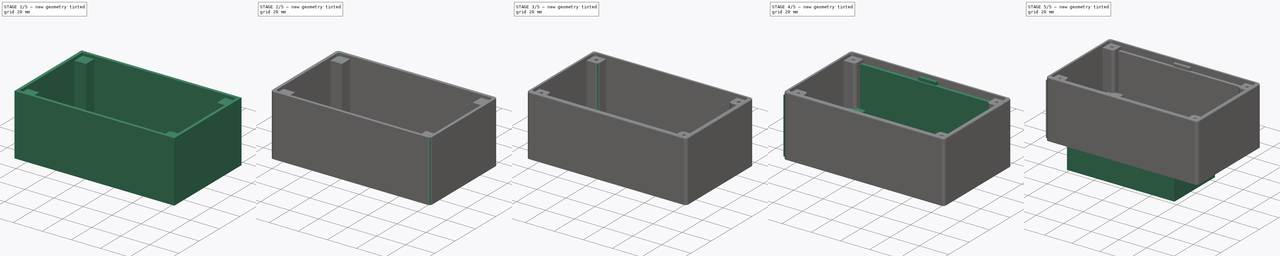
[diagram: build sequence overview — one tinted view per stage of 5, left to right]
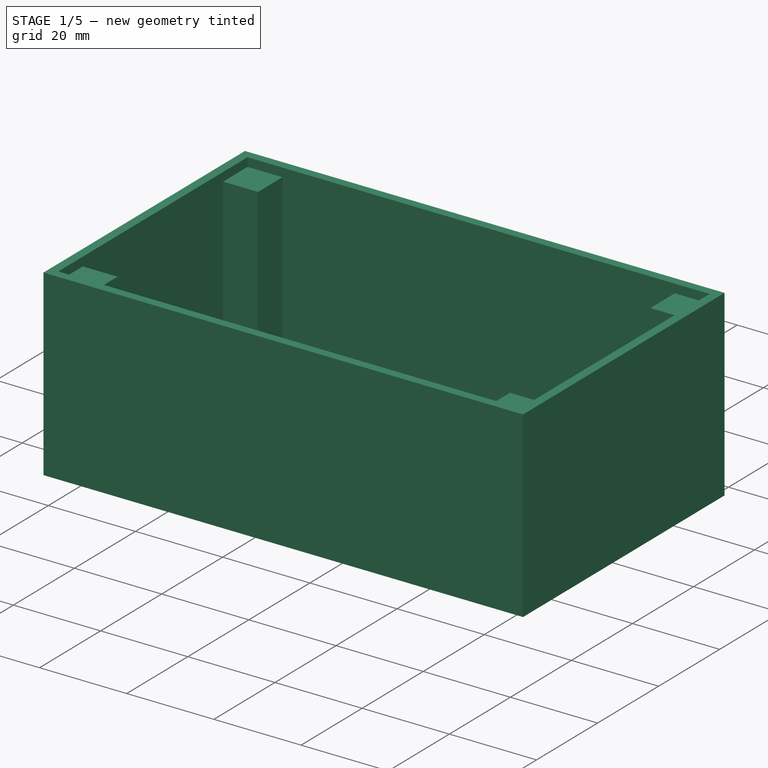
[diagram: stage 1 of 5 — iso view after this stage's code; geometry added in this stage tinted green]
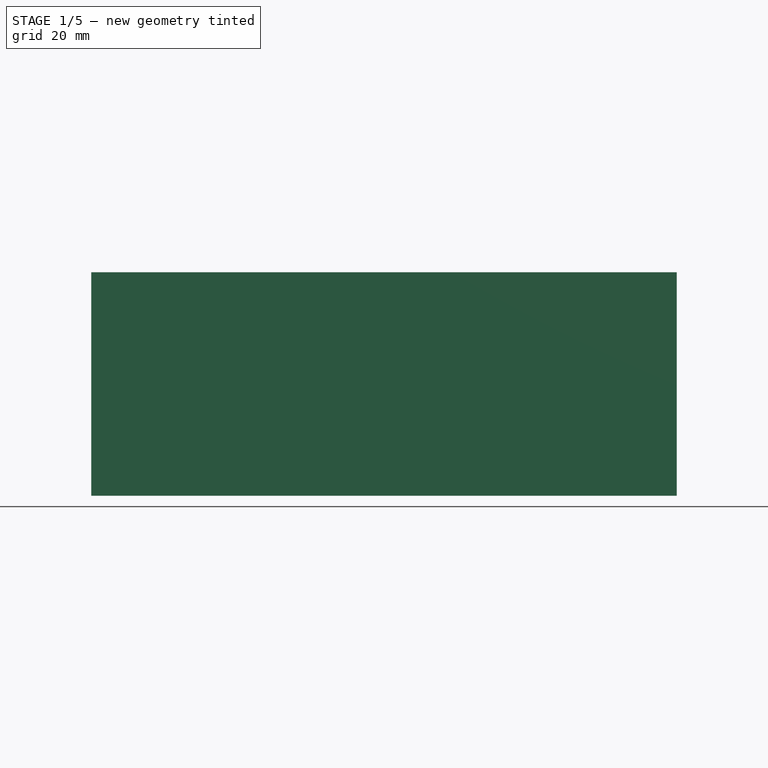
[diagram: stage 1 of 5 — front view after this stage's code; geometry added in this stage tinted green]
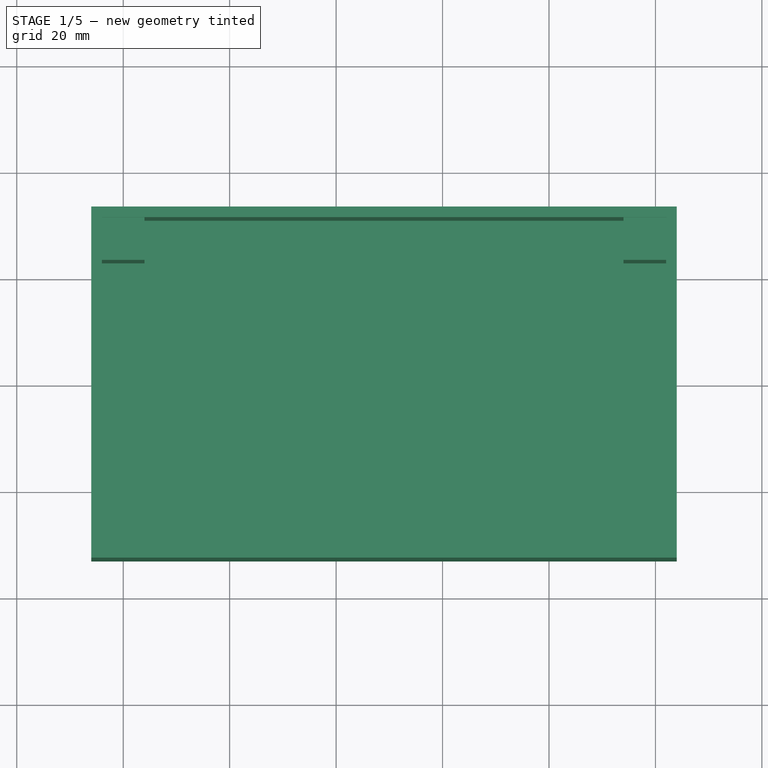
[diagram: stage 1 of 5 — top view after this stage's code; geometry added in this stage tinted green]
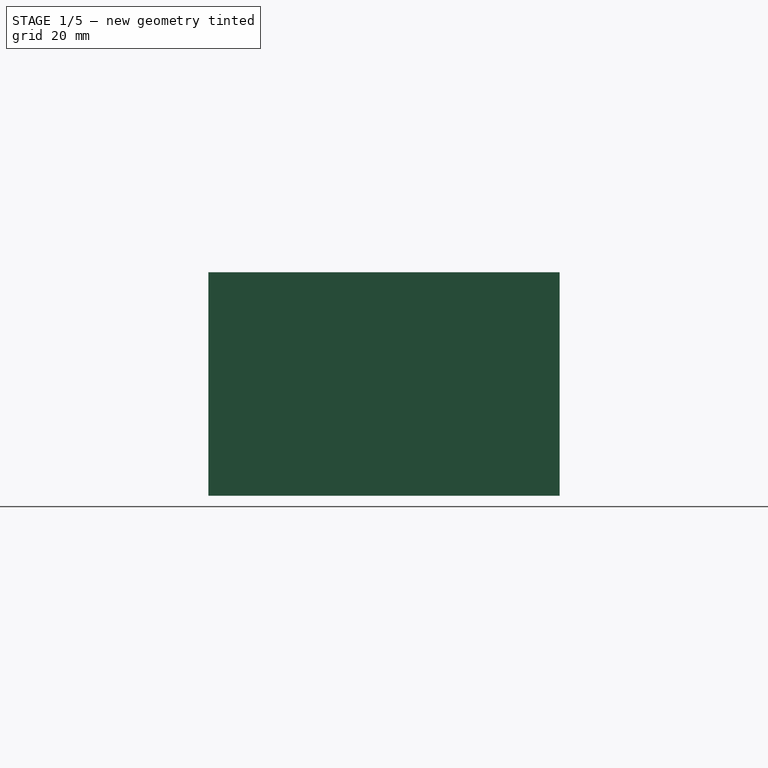
[diagram: stage 1 of 5 — right view after this stage's code; geometry added in this stage tinted green]
FCSTD DOCUMENT  (FreeCAD 0.21R33771 (Git))
Label: powerbank_case
License: All rights reserved
LicenseURL: http://en.wikipedia.org/wiki/All_rights_reserved
objects: Sketcher::SketchObject×17, PartDesign::Pad×11, PartDesign::Fillet×9, PartDesign::Pocket×6, PartDesign::Body×3, App::Part×3
note: 72 computed .brp shape members not serialized (recipe doc carries the construction recipe); baked Part::Feature solids carry a one-line shape summary decoded from their .brp

FEATURE [PartDesign::Body] Body001  label="Body"
  Group = -> [Sketch004,Pad004,Sketch006,Pocket002,Sketch007,Pad005]
  Origin = -> Origin003
  Tip = -> Pad005
FEATURE [App::Part] Part001  label="case"
  Group = -> [Body001]
  Origin = -> Origin002
FEATURE [Sketcher::SketchObject] Sketch008
  FullyConstrained = true
  MapMode = 5
  Support = -> [XY_Plane005]
  sketch-geometry (4):
    g0: LineSegment StartX=-46 StartY=33 StartZ=0 EndX=64 EndY=33 EndZ=0
    g1: LineSegment StartX=64 StartY=33 StartZ=0 EndX=64 EndY=-33 EndZ=0
    g2: LineSegment StartX=64 StartY=-33 StartZ=0 EndX=-46 EndY=-33 EndZ=0
    g3: LineSegment StartX=-46 StartY=-33 StartZ=0 EndX=-46 EndY=33 EndZ=0
  constraints (11):
    c: Coincident(g0,g1)
    c: Coincident(g1,g2)
    c: Coincident(g2,g3)
    c: Coincident(g3,g0)
    c: Horizontal(g0)
    c: Horizontal(g2)
    c: Vertical(g3)
    c: DistanceX(g0,g0) = 110
    c: DistanceY(g3,g3) = 66
    c: DistanceX(g0,g-1) = 46
    c: Symmetric(g0,g1,g-1)
FEATURE [PartDesign::Pad] Pad006  label="boden"
  Direction = (0,0,1)
  Length = 2
  Length2 = 10
  Profile = -> Sketch008
  ReferenceAxis = -> Sketch008 [N_Axis]
  Type = 0
FEATURE [Sketcher::SketchObject] Sketch009
  FullyConstrained = false
  Placement = pos=(0,0,2) rot=(0,0,1;0rad)
  Support = -> [Pad006]
  sketch-geometry (4):
    g0: Circle CenterX=-38 CenterY=18.5 CenterZ=0 NormalX=0 NormalY=0 NormalZ=1 AngleXU=0 Radius=3
    g1: Circle CenterX=45 CenterY=18.5 CenterZ=0 NormalX=0 NormalY=0 NormalZ=1 AngleXU=0 Radius=3
    g2: Circle CenterX=-38 CenterY=-18.5 CenterZ=0 NormalX=0 NormalY=0 NormalZ=1 AngleXU=0 Radius=3
    g3: Circle CenterX=45 CenterY=-18.5 CenterZ=0 NormalX=0 NormalY=0 NormalZ=1 AngleXU=0 Radius=3
  constraints (9):
    c: Diameter(g0) = 6
    c: Equal(g0,g1) = 6
    c: DistanceX(g0,g1) = 83
    c: Equal(g0,g2) = 6
    c: Equal(g2,g3) = 6
    c: Symmetric(g0,g2,g-1)
    c: Symmetric(g1,g3,g-1)
    c: DistanceY(g3,g1) = 37
    c: DistanceY(g2,g0) = 37
FEATURE [Sketcher::SketchObject] Sketch010
  ExternalGeometry = -> [Pad006]
  FullyConstrained = true
  MapMode = 5
  Placement = pos=(0,0,2) rot=(0,0,1;0rad)
  Support = -> [Pad006]
  sketch-geometry (4):
    g0: LineSegment StartX=-46 StartY=33 StartZ=0 EndX=64 EndY=33 EndZ=0
    g1: LineSegment StartX=64 StartY=33 StartZ=0 EndX=64 EndY=-33 EndZ=0
    g2: LineSegment StartX=64 StartY=-33 StartZ=0 EndX=-46 EndY=-33 EndZ=0
    g3: LineSegment StartX=-46 StartY=-33 StartZ=0 EndX=-46 EndY=33 EndZ=0
  constraints (10):
    c: Coincident(g0,g1)
    c: Coincident(g1,g2)
    c: Coincident(g2,g3)
    c: Coincident(g3,g0)
    c: Horizontal(g0)
    c: Horizontal(g2)
    c: Vertical(g1)
    c: Vertical(g3)
    c: Coincident(g0,g-3)
    c: Coincident(g1,g-5)
FEATURE [PartDesign::Pad] Pad008
  BaseFeature = -> Pad006
  Direction = (0,0,1)
  Length = 40
  Length2 = 10
  Profile = -> Sketch010
  ReferenceAxis = -> Sketch010 [N_Axis]
  Type = 0
FEATURE [Sketcher::SketchObject] Sketch011
  ExternalGeometry = -> [Pad008]
  FullyConstrained = true
  MapMode = 5
  Placement = pos=(0,0,42) rot=(0,0,1;0rad)
  Support = -> [Pad008]
  sketch-geometry (4):
    g0: LineSegment StartX=-44 StartY=31 StartZ=0 EndX=62 EndY=31 EndZ=0
    g1: LineSegment StartX=62 StartY=31 StartZ=0 EndX=62 EndY=-31 EndZ=0
    g2: LineSegment StartX=62 StartY=-31 StartZ=0 EndX=-44 EndY=-31 EndZ=0
    g3: LineSegment StartX=-44 StartY=-31 StartZ=0 EndX=-44 EndY=31 EndZ=0
  constraints (15):
    c: Coincident(g0,g1)
    c: Coincident(g1,g2)
    c: Coincident(g2,g3)
    c: Coincident(g3,g0)
    c: Horizontal(g0)
    c: Horizontal(g2)
    c: Vertical(g1)
    c: Vertical(g3)
    c: DistanceY(g0,g0) = 0
    c: DistanceY(g-3,g-3) = 0
    c: DistanceY(g0,g0) = 0
    c: DistanceY(g0,g-3) = 2
    c: DistanceX(g-4,g2) = 2
    c: DistanceX(g0,g-3) = 2
    c: DistanceY(g-5,g1) = 2
FEATURE [PartDesign::Pocket] Pocket003
  BaseFeature = -> Pad008
  Direction = (0,0,-1)
  Length = 40
  Length2 = 5
  Profile = -> Sketch011
  ReferenceAxis = -> Sketch011 [N_Axis]
  Type = 0
FEATURE [Sketcher::SketchObject] Sketch012
  ExternalGeometry = -> [Pocket003]
  FullyConstrained = true
  MapMode = 5
  Placement = pos=(0,0,2) rot=(0,0,1;0rad)
  Support = -> [Pocket003]
  sketch-geometry (16):
    g0: LineSegment StartX=-44 StartY=31 StartZ=0 EndX=-36 EndY=31 EndZ=0
    g1: LineSegment StartX=-36 StartY=31 StartZ=0 EndX=-36 EndY=23 EndZ=0
    g2: LineSegment StartX=-36 StartY=23 StartZ=0 EndX=-44 EndY=23 EndZ=0
    g3: LineSegment StartX=-44 StartY=23 StartZ=0 EndX=-44 EndY=31 EndZ=0
    g4: LineSegment StartX=54 StartY=31 StartZ=0 EndX=62 EndY=31 EndZ=0
    g5: LineSegment StartX=62 StartY=31 StartZ=0 EndX=62 EndY=23 EndZ=0
    g6: LineSegment StartX=62 StartY=23 StartZ=0 EndX=54 EndY=23 EndZ=0
    g7: LineSegment StartX=54 StartY=23 StartZ=0 EndX=54 EndY=31 EndZ=0
    g8: LineSegment StartX=-44 StartY=-23 StartZ=0 EndX=-36 EndY=-23 EndZ=0
    g9: LineSegment StartX=-36 StartY=-23 StartZ=0 EndX=-36 EndY=-31 EndZ=0
    g10: LineSegment StartX=-36 StartY=-31 StartZ=0 EndX=-44 EndY=-31 EndZ=0
    g11: LineSegment StartX=-44 StartY=-31 StartZ=0 EndX=-44 EndY=-23 EndZ=0
    g12: LineSegment StartX=54 StartY=-23 StartZ=0 EndX=62 EndY=-23 EndZ=0
    g13: LineSegment StartX=62 StartY=-23 StartZ=0 EndX=62 EndY=-31 EndZ=0
    g14: LineSegment StartX=62 StartY=-31 StartZ=0 EndX=54 EndY=-31 EndZ=0
    g15: LineSegment StartX=54 StartY=-31 StartZ=0 EndX=54 EndY=-23 EndZ=0
  constraints (47):
    c: Coincident(g0,g1)
    c: Coincident(g1,g2)
    c: Coincident(g2,g3)
    c: Coincident(g3,g0)
    c: Horizontal(g0)
    c: Horizontal(g2)
    c: Vertical(g1)
    c: Vertical(g3)
    c: Coincident(g0,g-3)
    c: DistanceX(g2,g2) = 8
    c: DistanceY(g1,g1) = 8
    c: Coincident(g4,g5)
    c: Coincident(g5,g6)
    c: Coincident(g6,g7)
    c: Coincident(g7,g4)
    c: Horizontal(g4)
    c: Horizontal(g6)
    c: Vertical(g5)
    c: Vertical(g7)
    c: Equal(g2,g6) = 6
    c: Equal(g1,g5) = 6
    c: DistanceX(g-4,g4) = 0
    c: DistanceY(g4,g-4) = 0
    c: Coincident(g8,g9)
    c: Coincident(g9,g10)
    c: Coincident(g10,g11)
    c: Coincident(g11,g8)
    c: Horizontal(g8)
    c: Horizontal(g10)
    c: Vertical(g9)
    c: Vertical(g11)
    c: Equal(g2,g10) = 8
    c: Equal(g1,g9) = 8
    c: DistanceY(g-5,g10) = 0
    c: DistanceX(g-5,g8) = 0
    c: Coincident(g12,g13)
    c: Coincident(g13,g14)
    c: Coincident(g14,g15)
    c: Coincident(g15,g12)
    c: Horizontal(g12)
    c: Horizontal(g14)
    c: Vertical(g13)
    c: Vertical(g15)
    c: Equal(g2,g14) = 8
    c: Equal(g1,g13) = 8
    c: DistanceX(g13,g-6) = 0
    c: DistanceY(g-6,g13) = 0
FEATURE [PartDesign::Pad] Pad009
  BaseFeature = -> Pocket003
  Direction = (0,0,1)
  Length = 38
  Length2 = 10
  Profile = -> Sketch012
  ReferenceAxis = -> Sketch012 [N_Axis]
  Type = 0
FEATURE [PartDesign::Fillet] Fillet
  Base = -> Pad009 [Edge37]
  BaseFeature = -> Pad009
  Radius = 2
  SupportTransform = false
  UseAllEdges = false
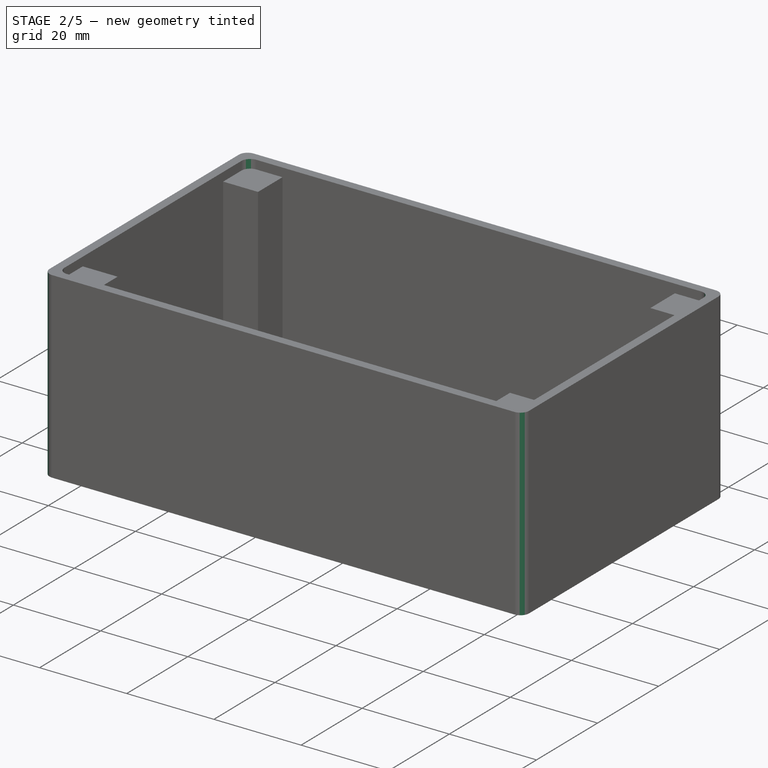
[diagram: stage 2 of 5 — iso view after this stage's code; geometry added in this stage tinted green]
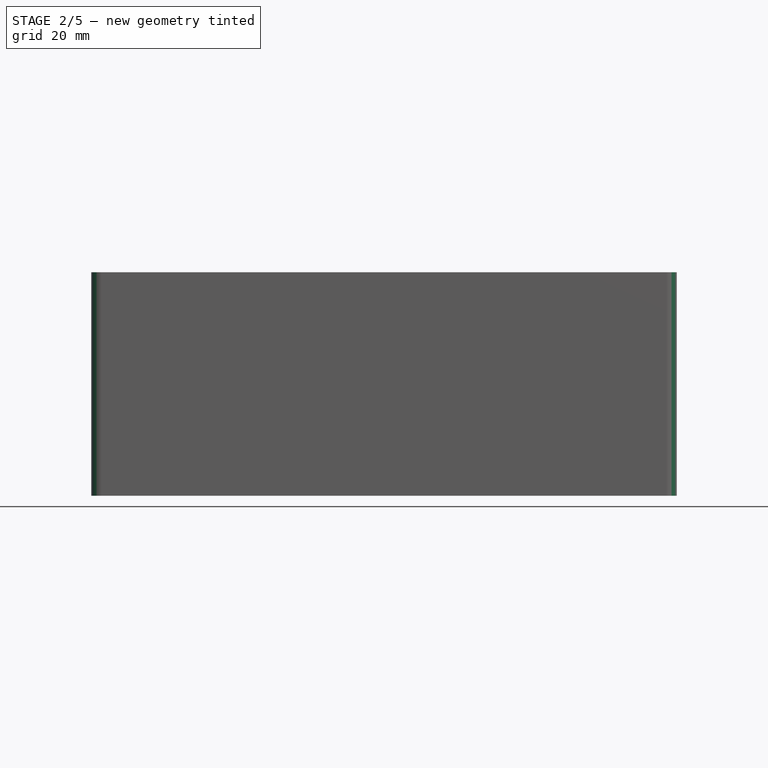
[diagram: stage 2 of 5 — front view after this stage's code; geometry added in this stage tinted green]
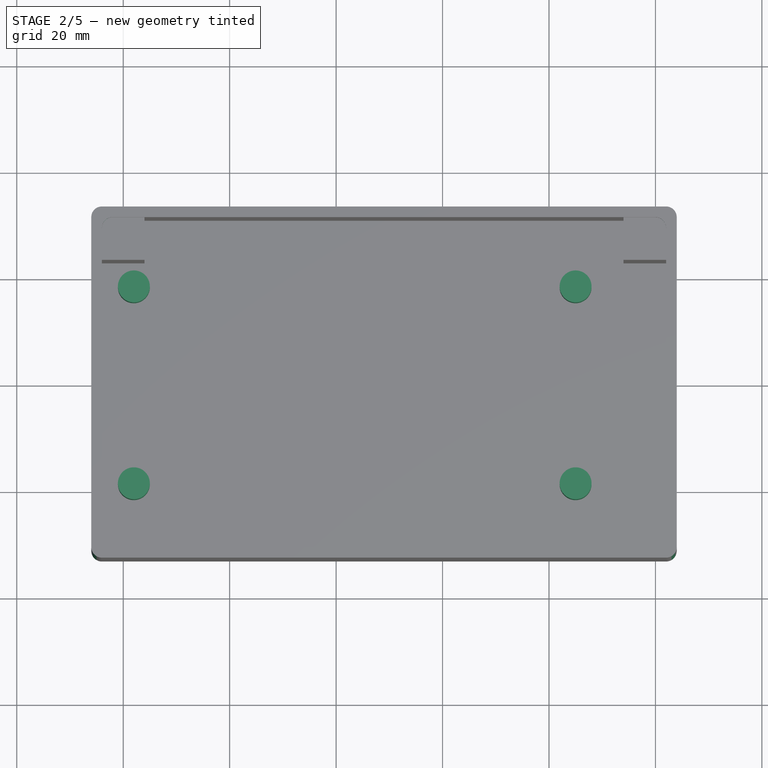
[diagram: stage 2 of 5 — top view after this stage's code; geometry added in this stage tinted green]
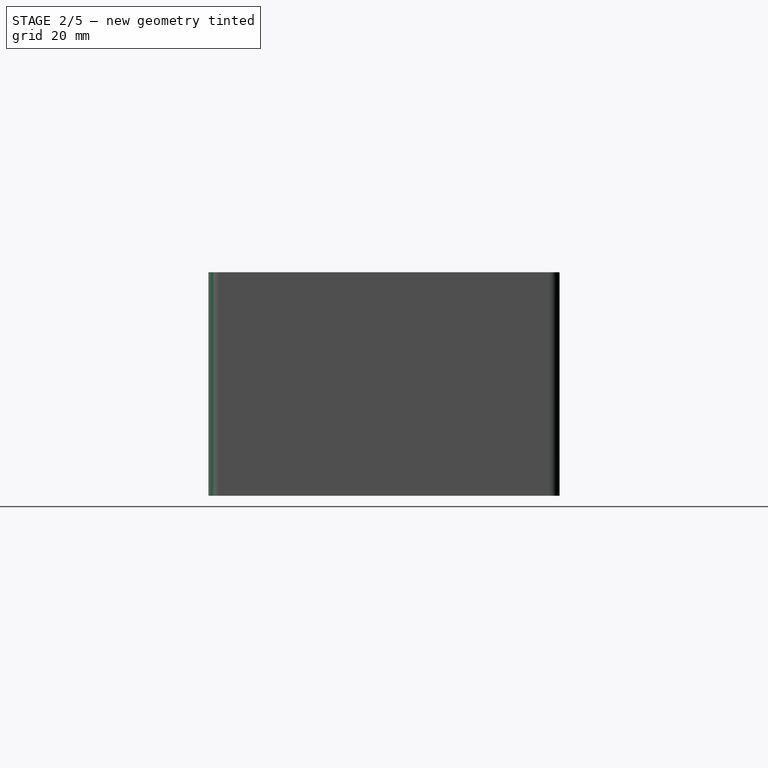
[diagram: stage 2 of 5 — right view after this stage's code; geometry added in this stage tinted green]
FEATURE [PartDesign::Fillet] Fillet001
  Base = -> Fillet [Edge19]
  BaseFeature = -> Fillet
  Radius = 2
  SupportTransform = false
  UseAllEdges = false
FEATURE [PartDesign::Fillet] Fillet002
  Base = -> Fillet001 [Edge26]
  BaseFeature = -> Fillet001
  Radius = 2
  SupportTransform = false
  UseAllEdges = false
FEATURE [PartDesign::Fillet] Fillet003
  Base = -> Fillet002 [Edge29]
  BaseFeature = -> Fillet002
  Radius = 2
  SupportTransform = false
  UseAllEdges = false
FEATURE [PartDesign::Fillet] Fillet004
  Base = -> Fillet003 [Edge46,Edge50,Edge48,Edge45]
  BaseFeature = -> Fillet003
  Radius = 2
  SupportTransform = false
  UseAllEdges = false
FEATURE [PartDesign::Pad] Pad010
  BaseFeature = -> Fillet004
  Direction = (0,0,1)
  Length = 10
  Length2 = 10
  Profile = -> Sketch009
  ReferenceAxis = -> Sketch009 [N_Axis]
  Type = 0
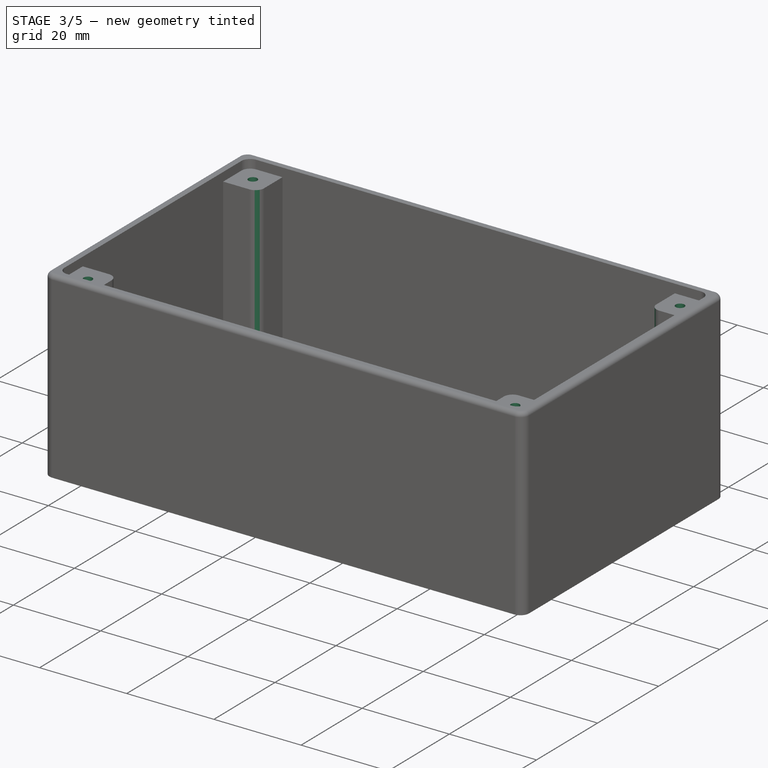
[diagram: stage 3 of 5 — iso view after this stage's code; geometry added in this stage tinted green]
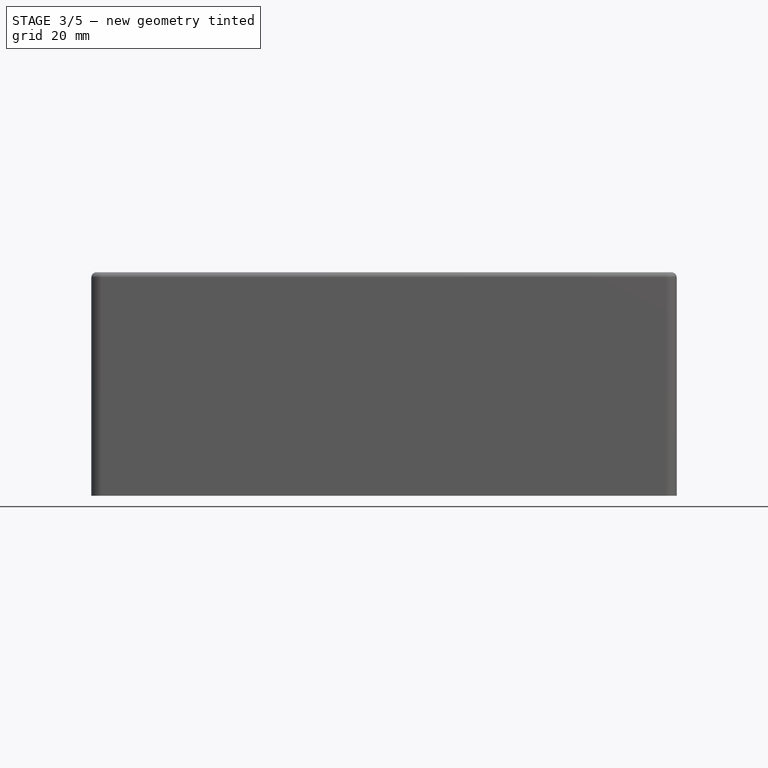
[diagram: stage 3 of 5 — front view after this stage's code; geometry added in this stage tinted green]
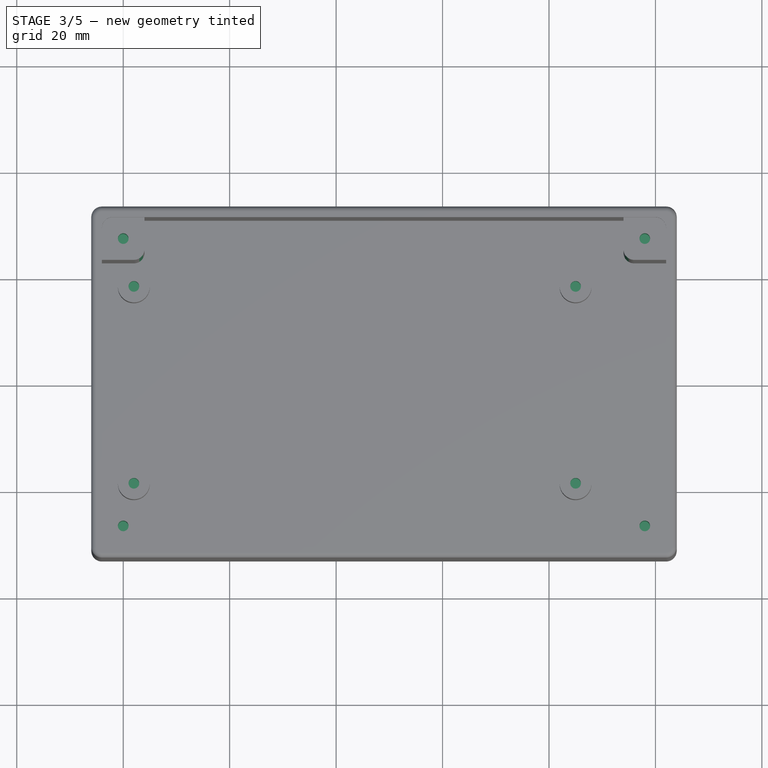
[diagram: stage 3 of 5 — top view after this stage's code; geometry added in this stage tinted green]
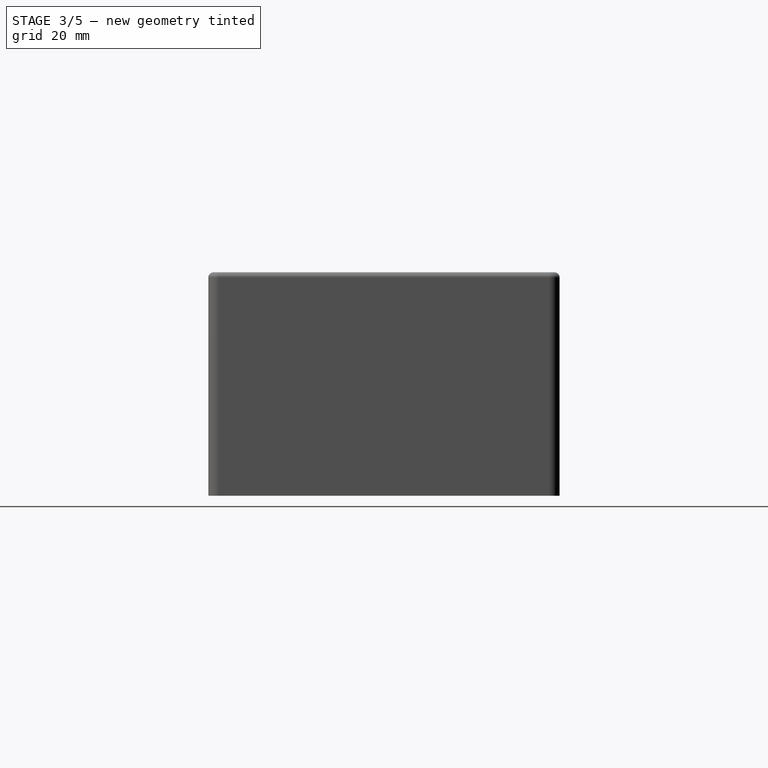
[diagram: stage 3 of 5 — right view after this stage's code; geometry added in this stage tinted green]
FEATURE [Sketcher::SketchObject] Sketch013
  ExternalGeometry = -> [Pad010]
  FullyConstrained = true
  MapMode = 5
  Placement = pos=(-46,0,0) rot=(0.57735,-0.57735,-0.57735;2.0944rad)
  Support = -> [Pad010]
  sketch-geometry (4):
    g0: LineSegment StartX=-8 StartY=17 StartZ=0 EndX=8 EndY=17 EndZ=0
    g1: LineSegment StartX=8 StartY=17 StartZ=0 EndX=8 EndY=7 EndZ=0
    g2: LineSegment StartX=8 StartY=7 StartZ=0 EndX=-8 EndY=7 EndZ=0
    g3: LineSegment StartX=-8 StartY=7 StartZ=0 EndX=-8 EndY=17 EndZ=0
  constraints (11):
    c: Coincident(g0,g1)
    c: Coincident(g1,g2)
    c: Coincident(g2,g3)
    c: Coincident(g3,g0)
    c: Horizontal(g2)
    c: Vertical(g1)
    c: Vertical(g3)
    c: DistanceX(g0,g0) = 16
    c: DistanceY(g3,g3) = 10
    c: DistanceY(g-3,g1) = 5
    c: Symmetric(g0,g0,g-2)
FEATURE [PartDesign::Pocket] Pocket004
  BaseFeature = -> Pad010
  Direction = (1,0,0)
  Length = 2
  Length2 = 5
  Profile = -> Sketch013
  ReferenceAxis = -> Sketch013 [N_Axis]
  Type = 0
FEATURE [Sketcher::SketchObject] Sketch014
  ExternalGeometry = -> [Pocket004]
  FullyConstrained = true
  MapMode = 5
  Placement = pos=(0,0,40) rot=(0,0,1;0rad)
  Support = -> [Pocket004]
  sketch-geometry (4):
    g0: Circle CenterX=-40 CenterY=27 CenterZ=0 NormalX=0 NormalY=0 NormalZ=1 AngleXU=0 Radius=1
    g1: Circle CenterX=58 CenterY=27 CenterZ=0 NormalX=0 NormalY=0 NormalZ=1 AngleXU=0 Radius=1
    g2: Circle CenterX=-40 CenterY=-27 CenterZ=0 NormalX=0 NormalY=0 NormalZ=1 AngleXU=0 Radius=1
    g3: Circle CenterX=58 CenterY=-27 CenterZ=0 NormalX=0 NormalY=0 NormalZ=1 AngleXU=0 Radius=1
  constraints (12):
    c: Diameter(g0) = 2
    c: DistanceX(g-3,g0) = 4
    c: DistanceY(g0,g-5) = 4
    c: Equal(g0,g1) = 2
    c: DistanceY(g1,g-4) = 6
    c: DistanceX(g1,g-6) = 6
    c: Equal(g0,g2) = 2
    c: DistanceX(g-3,g2) = 4
    c: DistanceY(g-7,g2) = 4
    c: Equal(g0,g3) = 2
    c: DistanceY(g-7,g3) = 4
    c: DistanceX(g3,g-6) = 6
FEATURE [PartDesign::Pocket] Pocket005
  BaseFeature = -> Pocket004
  Direction = (0,0,-1)
  Length = 8
  Length2 = 5
  Profile = -> Sketch014
  ReferenceAxis = -> Sketch014 [N_Axis]
  Type = 0
FEATURE [PartDesign::Fillet] Fillet005
  Base = -> Pocket005 [Edge1,Edge3,Edge5,Edge2,Edge4,Edge6,Edge8,Edge7]
  BaseFeature = -> Pocket005
  Radius = 1
  SupportTransform = false
  UseAllEdges = false
FEATURE [PartDesign::Fillet] Fillet006
  Base = -> Fillet005 [Edge110,Edge112,Edge109,Edge111]
  BaseFeature = -> Fillet005
  Radius = 1
  SupportTransform = false
  UseAllEdges = false
FEATURE [PartDesign::Fillet] Fillet007
  Base = -> Fillet006 [Edge116,Edge119,Edge62,Edge60]
  BaseFeature = -> Fillet006
  Radius = 2
  SupportTransform = false
  UseAllEdges = false
FEATURE [Sketcher::SketchObject] Sketch015
  ExternalGeometry = -> [Fillet007]
  FullyConstrained = true
  MapMode = 5
  Placement = pos=(0,0,12) rot=(0,0,1;0rad)
  Support = -> [Fillet007]
  sketch-geometry (4):
    g0: Circle CenterX=-38 CenterY=18.5 CenterZ=0 NormalX=0 NormalY=0 NormalZ=1 AngleXU=0 Radius=1
    g1: Circle CenterX=45 CenterY=18.5 CenterZ=0 NormalX=0 NormalY=0 NormalZ=1 AngleXU=0 Radius=1
    g2: Circle CenterX=-38 CenterY=-18.5 CenterZ=0 NormalX=0 NormalY=0 NormalZ=1 AngleXU=0 Radius=1
    g3: Circle CenterX=45 CenterY=-18.5 CenterZ=0 NormalX=0 NormalY=0 NormalZ=1 AngleXU=0 Radius=1
  constraints (12):
    c: Diameter(g0) = 2
    c: DistanceX(g-3,g0) = 0
    c: DistanceY(g0,g-3) = 0
    c: Equal(g0,g1) = 2
    c: Equal(g0,g2) = 2
    c: Equal(g0,g3) = 2
    c: DistanceY(g1,g-4) = 0
    c: DistanceX(g-4,g1) = 0
    c: DistanceX(g3,g-5) = 0
    c: DistanceY(g3,g-5) = 0
    c: DistanceY(g-6,g2) = 0
    c: DistanceX(g-6,g2) = 0
FEATURE [PartDesign::Pocket] Pocket006
  BaseFeature = -> Fillet007
  Direction = (0,0,-1)
  Length = 5
  Length2 = 5
  Profile = -> Sketch015
  ReferenceAxis = -> Sketch015 [N_Axis]
  Type = 0
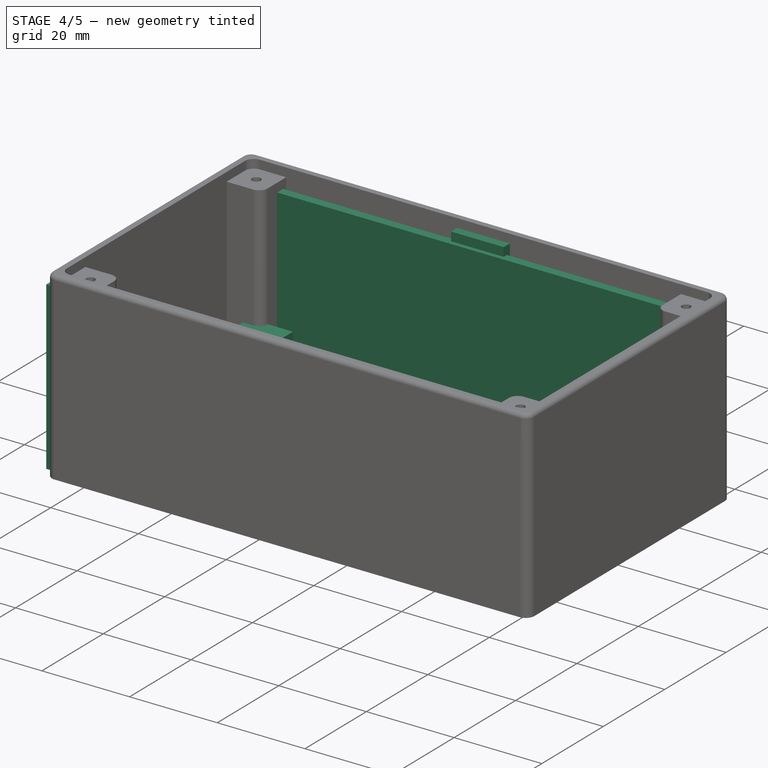
[diagram: stage 4 of 5 — iso view after this stage's code; geometry added in this stage tinted green]
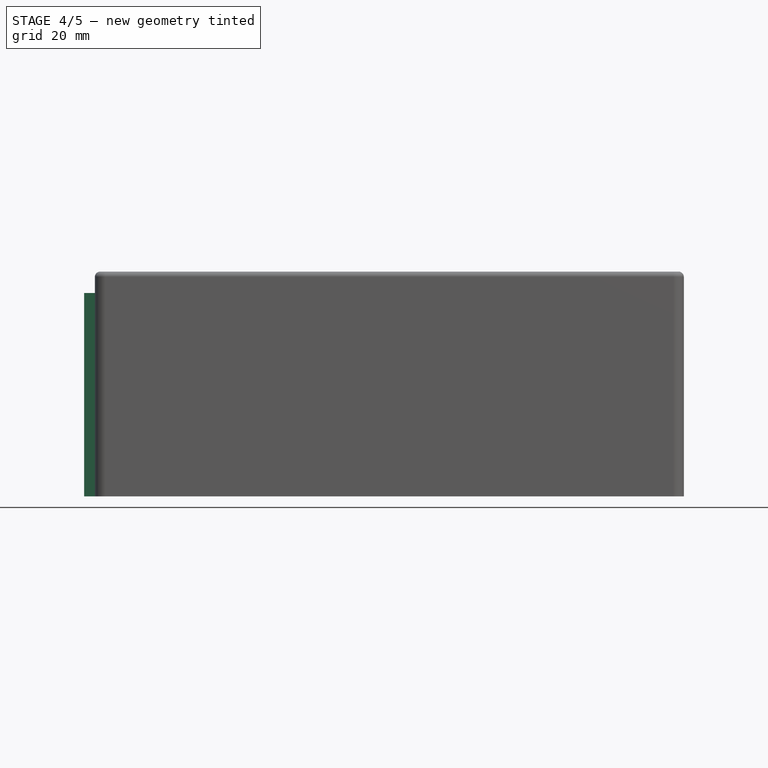
[diagram: stage 4 of 5 — front view after this stage's code; geometry added in this stage tinted green]
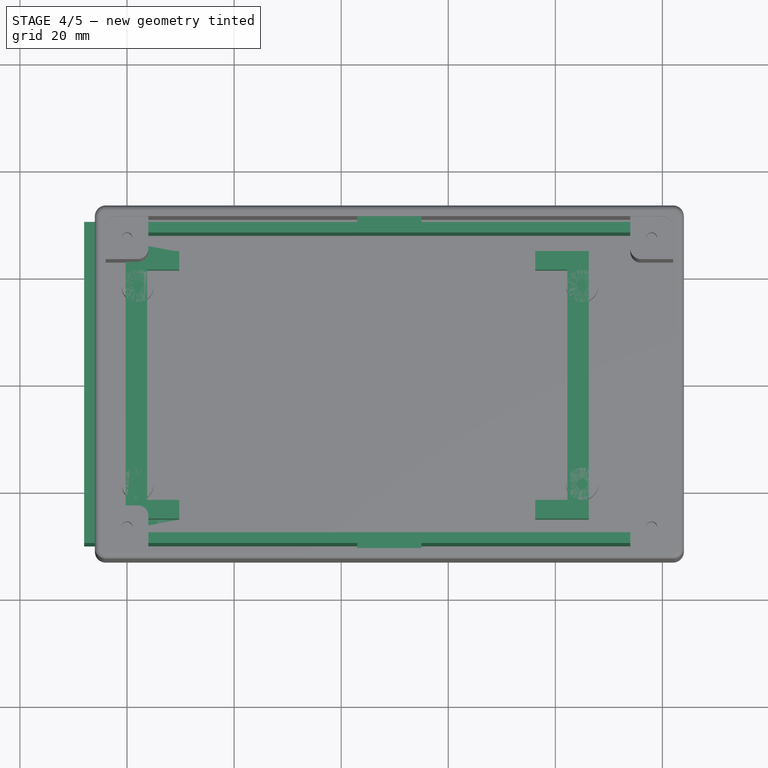
[diagram: stage 4 of 5 — top view after this stage's code; geometry added in this stage tinted green]
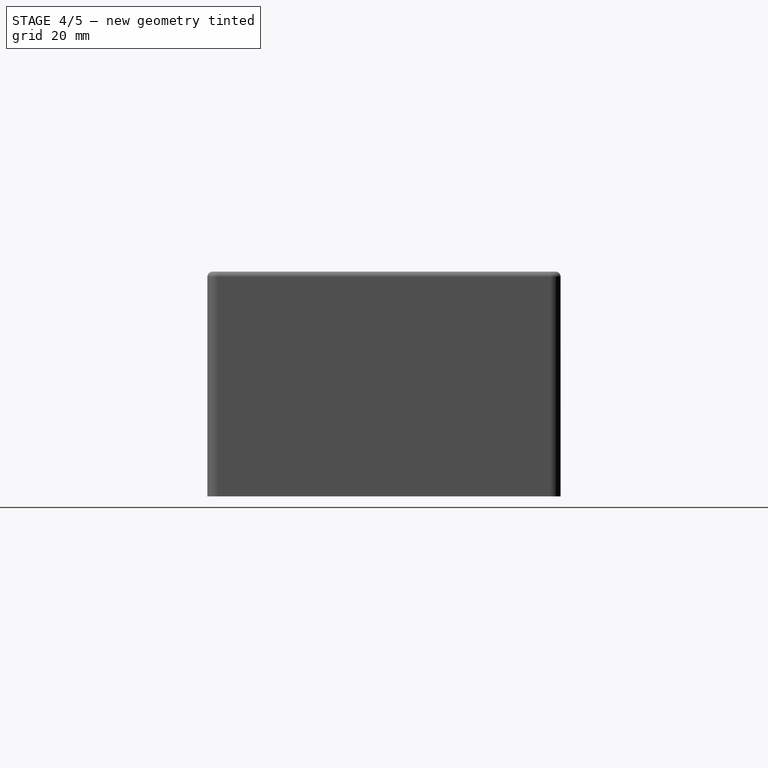
[diagram: stage 4 of 5 — right view after this stage's code; geometry added in this stage tinted green]
FEATURE [PartDesign::Body] Body  label="pcb"
  Group = -> [Sketch,Pad,Sketch001,Pad001,Sketch002,Pocket,Sketch003,Pad002,Sketch005,Pad003]
  Origin = -> Origin001
  Placement = pos=(3,0,24) rot=(0,0,1;0rad)
  Tip = -> Pad003
FEATURE [App::Part] Part  label="pcb001"
  Group = -> [Body]
  Origin = -> Origin
  Placement = pos=(0,0,39) rot=(1,0,0;3.14159rad)
FEATURE [PartDesign::Pad] Pad004
  Direction = (0,0,1)
  Length = 38
  Length2 = 10
  Profile = -> Sketch004
  ReferenceAxis = -> Sketch004 [N_Axis]
  Type = 0
FEATURE [Sketcher::SketchObject] Sketch006
  ExternalGeometry = -> [Pad004]
  FullyConstrained = true
  MapMode = 5
  Placement = pos=(0,0,38) rot=(0,0,1;0rad)
  Support = -> [Pad004]
  sketch-geometry (4):
    g0: LineSegment StartX=-46 StartY=28 StartZ=0 EndX=62 EndY=28 EndZ=0
    g1: LineSegment StartX=62 StartY=28 StartZ=0 EndX=62 EndY=-28 EndZ=0
    g2: LineSegment StartX=62 StartY=-28 StartZ=0 EndX=-46 EndY=-28 EndZ=0
    g3: LineSegment StartX=-46 StartY=-28 StartZ=0 EndX=-46 EndY=28 EndZ=0
  constraints (14):
    c: Coincident(g0,g1)
    c: Coincident(g1,g2)
    c: Coincident(g2,g3)
    c: Coincident(g3,g0)
    c: Horizontal(g0)
    c: Horizontal(g2)
    c: Vertical(g1)
    c: Vertical(g3)
    c: DistanceY(g0,g-3) = 2
    c: DistanceX(g-3,g0) = 2
    c: DistanceX(g0,g-3) = 2
    c: DistanceY(g0,g-3) = 2
    c: DistanceX(g1,g-4) = 2
    c: DistanceY(g-4,g1) = 2
FEATURE [PartDesign::Pocket] Pocket002
  BaseFeature = -> Pad004
  Direction = (0,0,-1)
  Length = 36
  Length2 = 5
  Profile = -> Sketch006
  ReferenceAxis = -> Sketch006 [N_Axis]
  Type = 0
FEATURE [Sketcher::SketchObject] Sketch007
  FullyConstrained = true
  MapMode = 5
  Placement = pos=(0,0,2) rot=(0,0,1;0rad)
  Support = -> [Pocket002]
  sketch-geometry (16):
    g0: LineSegment StartX=-36.25 StartY=21.5 StartZ=0 EndX=-36.25 EndY=-21.5 EndZ=0
    g1: LineSegment StartX=-36.25 StartY=-21.5 StartZ=0 EndX=-30.25 EndY=-21.5 EndZ=0
    g2: LineSegment StartX=-30.25 StartY=-21.5 StartZ=0 EndX=-30.25 EndY=-25 EndZ=0
    g3: LineSegment StartX=-30.25 StartY=-25 StartZ=0 EndX=-40.25 EndY=-25 EndZ=0
    g4: LineSegment StartX=-40.25 StartY=-25 StartZ=0 EndX=-40.25 EndY=25 EndZ=0
    g5: LineSegment StartX=-40.25 StartY=25 StartZ=0 EndX=-30.25 EndY=25 EndZ=0
    g6: LineSegment StartX=-30.25 StartY=25 StartZ=0 EndX=-30.25 EndY=21.5 EndZ=0
    g7: LineSegment StartX=-30.25 StartY=21.5 StartZ=0 EndX=-36.25 EndY=21.5 EndZ=0
    g8: LineSegment StartX=42.25 StartY=-21.5 StartZ=0 EndX=42.25 EndY=21.5 EndZ=0
    g9: LineSegment StartX=42.25 StartY=21.5 StartZ=0 EndX=36.25 EndY=21.5 EndZ=0
    g10: LineSegment StartX=36.25 StartY=21.5 StartZ=0 EndX=36.25 EndY=25 EndZ=0
    g11: LineSegment StartX=36.25 StartY=25 StartZ=0 EndX=46.25 EndY=25 EndZ=0
    g12: LineSegment StartX=46.25 StartY=25 StartZ=0 EndX=46.25 EndY=-25 EndZ=0
    g13: LineSegment StartX=46.25 StartY=-25 StartZ=0 EndX=36.25 EndY=-25 EndZ=0
    g14: LineSegment StartX=36.25 StartY=-25 StartZ=0 EndX=36.25 EndY=-21.5 EndZ=0
    g15: LineSegment StartX=36.25 StartY=-21.5 StartZ=0 EndX=42.25 EndY=-21.5 EndZ=0
  constraints (45):
    c: Coincident(g0,g1)
    c: Coincident(g1,g2)
    c: Coincident(g2,g3)
    c: Coincident(g3,g4)
    c: Coincident(g4,g5)
    c: Horizontal(g5)
    c: Coincident(g5,g6)
    c: Coincident(g6,g7)
    c: Coincident(g7,g0)
    c: Parallel(g7,g5)
    c: Parallel(g5,g3)
    c: Parallel(g3,g1)
    c: Equal(g7,g1)
    c: Equal(g5,g3)
    c: DistanceY(g0,g0) = 43
    c: DistanceY(g4,g4) = 50
    c: Parallel(g2,g0)
    c: Equal(g6,g2)
    c: DistanceX(g3,g3) = 10
    c: Parallel(g6,g0)
    c: DistanceX(g1,g1) = 6
    c: Symmetric(g0,g0,g-1)
    c: Coincident(g8,g9)
    c: Coincident(g9,g10)
    c: Coincident(g10,g11)
    c: Coincident(g11,g12)
    c: Coincident(g12,g13)
    c: Horizontal(g13)
    c: Coincident(g13,g14)
    c: Coincident(g14,g15)
    c: Coincident(g15,g8)
    c: Parallel(g15,g13)
    c: Parallel(g13,g11)
    c: Parallel(g11,g9)
    c: Equal(g15,g9)
    c: Equal(g13,g11)
    c: Parallel(g10,g8)
    c: Equal(g14,g10)
    c: Parallel(g14,g8)
    c: DistanceX(g10,g11) = 10
    c: DistanceX(g15,g15) = 6
    c: DistanceY(g12,g12) = 50
    c: Symmetric(g8,g8,g-1)
    c: DistanceX(g0,g8) = 78.5
    c: Symmetric(g0,g9,g-2)
FEATURE [PartDesign::Pad] Pad005
  BaseFeature = -> Pocket002
  Direction = (0,0,1)
  Length = 10
  Length2 = 10
  Profile = -> Sketch007
  ReferenceAxis = -> Sketch007 [N_Axis]
  Type = 0
FEATURE [PartDesign::Fillet] Fillet008
  Base = -> Pocket006 [Edge81,Edge85,Edge77,Edge74,Edge79,Edge83,Edge87,Edge89]
  BaseFeature = -> Pocket006
  Radius = 1
  SupportTransform = false
  UseAllEdges = false
FEATURE [Sketcher::SketchObject] Sketch016
  ExternalGeometry = -> [Fillet008]
  FullyConstrained = true
  MapMode = 5
  Placement = pos=(0,0,2) rot=(0,0,1;0rad)
  Support = -> [Fillet008]
  sketch-geometry (8):
    g0: LineSegment StartX=3 StartY=31 StartZ=0 EndX=15 EndY=31 EndZ=0
    g1: LineSegment StartX=15 StartY=31 StartZ=0 EndX=15 EndY=29 EndZ=0
    g2: LineSegment StartX=15 StartY=29 StartZ=0 EndX=3 EndY=29 EndZ=0
    g3: LineSegment StartX=3 StartY=29 StartZ=0 EndX=3 EndY=31 EndZ=0
    g4: LineSegment StartX=3 StartY=-29 StartZ=0 EndX=15 EndY=-29 EndZ=0
    g5: LineSegment StartX=15 StartY=-29 StartZ=0 EndX=15 EndY=-31 EndZ=0
    g6: LineSegment StartX=15 StartY=-31 StartZ=0 EndX=3 EndY=-31 EndZ=0
    g7: LineSegment StartX=3 StartY=-31 StartZ=0 EndX=3 EndY=-29 EndZ=0
  constraints (24):
    c: Coincident(g0,g1)
    c: Coincident(g1,g2)
    c: Coincident(g2,g3)
    c: Coincident(g3,g0)
    c: Horizontal(g0)
    c: Horizontal(g2)
    c: Vertical(g1)
    c: Vertical(g3)
    c: PointOnObject(g0,g-3)
    c: DistanceX(g2,g2) = 12
    c: DistanceY(g3,g3) = 2
    c: DistanceX(g-1,g2) = 3
    c: Coincident(g4,g5)
    c: Coincident(g5,g6)
    c: Coincident(g6,g7)
    c: Coincident(g7,g4)
    c: Horizontal(g4)
    c: Horizontal(g6)
    c: Vertical(g5)
    c: Vertical(g7)
    c: Equal(g2,g6) = 12
    c: Equal(g3,g7) = 2
    c: DistanceX(g-1,g4) = 3
    c: DistanceY(g-5,g6) = 0
FEATURE [PartDesign::Pad] Pad011
  BaseFeature = -> Fillet008
  Direction = (0,0,1)
  Length = 38
  Length2 = 10
  Profile = -> Sketch016
  ReferenceAxis = -> Sketch016 [N_Axis]
  Type = 0
FEATURE [PartDesign::Body] Body002  label="base"
  Group = -> [Pad006,Sketch008,Sketch010,Pad008,Sketch011,Pocket003,Sketch012,Pad009,Fillet,Fillet001,Fillet002,Fillet003,Fillet004,Sketch009,Pad010,Sketch013,Pocket004,Sketch014,Pocket005,Fillet005,Fillet006,Fillet007,Sketch015,Pocket006,Fillet008,Sketch016,Pad011]
  Origin = -> Origin005
  Tip = -> Pad011
FEATURE [App::Part] Part002  label="case_new"
  Group = -> [Body002]
  Origin = -> Origin004
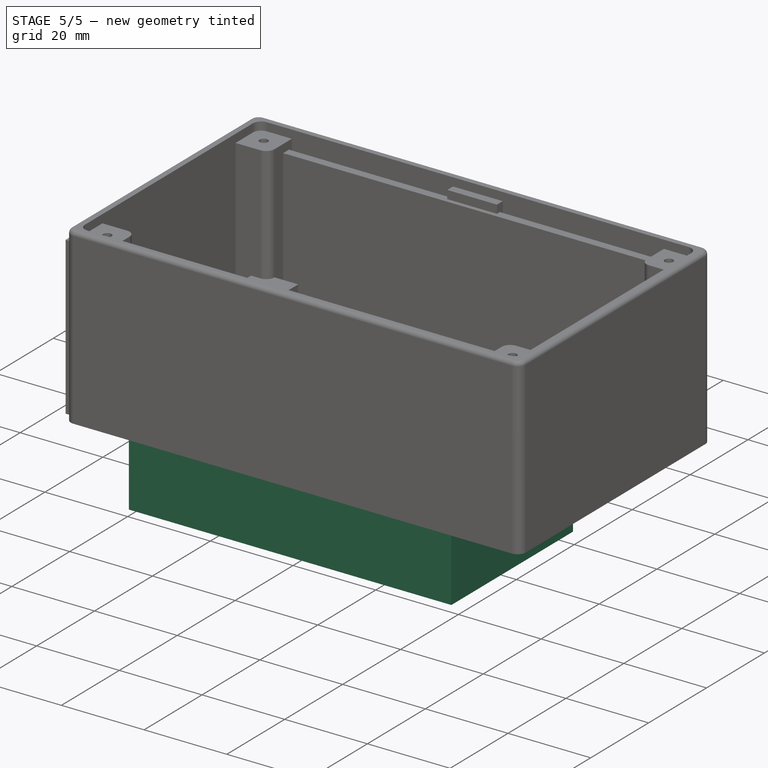
[diagram: stage 5 of 5 — iso view after this stage's code; geometry added in this stage tinted green]
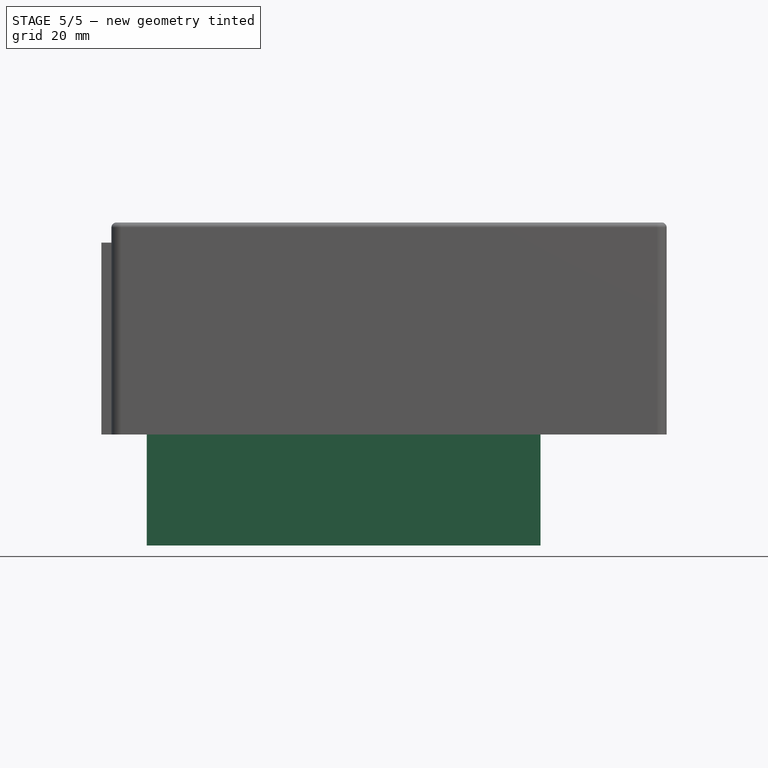
[diagram: stage 5 of 5 — front view after this stage's code; geometry added in this stage tinted green]
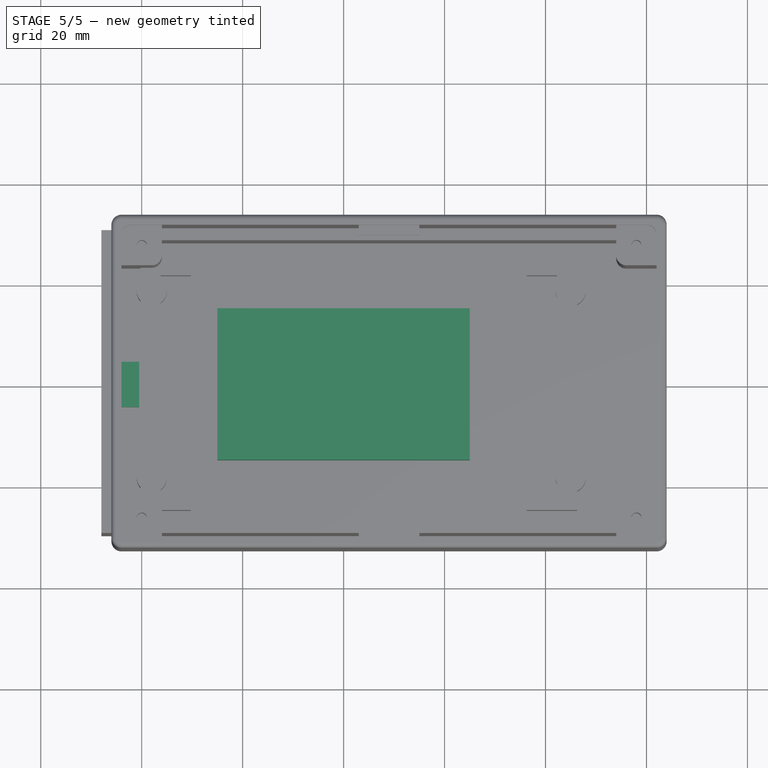
[diagram: stage 5 of 5 — top view after this stage's code; geometry added in this stage tinted green]
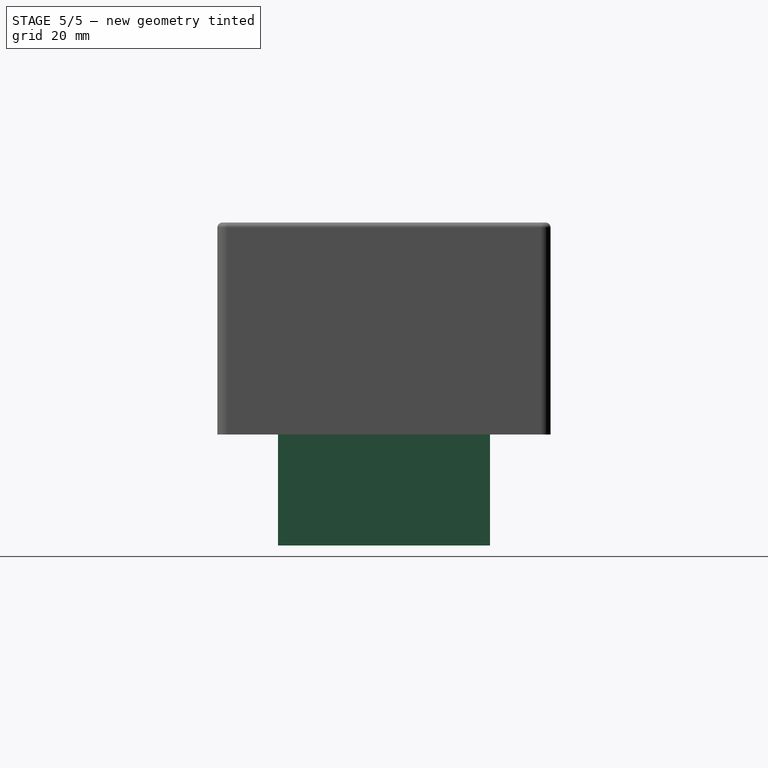
[diagram: stage 5 of 5 — right view after this stage's code; geometry added in this stage tinted green]
FEATURE [Sketcher::SketchObject] Sketch
  FullyConstrained = true
  MapMode = 5
  Support = -> [XY_Plane001]
  sketch-geometry (5):
    g0: LineSegment StartX=44.5 StartY=-21 StartZ=0 EndX=44.5 EndY=21 EndZ=0
    g1: LineSegment StartX=44.5 StartY=21 StartZ=0 EndX=-44.5 EndY=21 EndZ=0
    g2: LineSegment StartX=-44.5 StartY=21 StartZ=0 EndX=-44.5 EndY=-21 EndZ=0
    g3: LineSegment StartX=-44.5 StartY=-21 StartZ=0 EndX=44.5 EndY=-21 EndZ=0
    g4: GeomPoint X=0 Y=0 Z=0
  constraints (12):
    c: Coincident(g0,g1)
    c: Coincident(g1,g2)
    c: Coincident(g2,g3)
    c: Coincident(g3,g0)
    c: Horizontal(g1)
    c: Horizontal(g3)
    c: Vertical(g0)
    c: Vertical(g2)
    c: Symmetric(g1,g0,g4)
    c: Coincident(g4,g-1)
    c: DistanceX(g1,g1) = 89
    c: DistanceY(g2,g2) = 42
FEATURE [PartDesign::Pad] Pad
  Direction = (0,0,1)
  Length = 2
  Length2 = 10
  Profile = -> Sketch
  ReferenceAxis = -> Sketch [N_Axis]
  Type = 0
FEATURE [Sketcher::SketchObject] Sketch001
  FullyConstrained = true
  MapMode = 5
  Placement = pos=(0,0,2) rot=(0,0,1;0rad)
  Support = -> [Pad]
  sketch-geometry (5):
    g0: LineSegment StartX=25 StartY=-15 StartZ=0 EndX=25 EndY=15 EndZ=0
    g1: LineSegment StartX=25 StartY=15 StartZ=0 EndX=-25 EndY=15 EndZ=0
    g2: LineSegment StartX=-25 StartY=15 StartZ=0 EndX=-25 EndY=-15 EndZ=0
    g3: LineSegment StartX=-25 StartY=-15 StartZ=0 EndX=25 EndY=-15 EndZ=0
    g4: GeomPoint X=0 Y=0 Z=0
  constraints (12):
    c: Coincident(g0,g1)
    c: Coincident(g1,g2)
    c: Coincident(g2,g3)
    c: Coincident(g3,g0)
    c: Horizontal(g1)
    c: Horizontal(g3)
    c: Vertical(g0)
    c: Vertical(g2)
    c: Symmetric(g1,g0,g4)
    c: Coincident(g4,g-1)
    c: DistanceX(g1,g1) = 50
    c: DistanceY(g2,g2) = 30
FEATURE [PartDesign::Pad] Pad001
  BaseFeature = -> Pad
  Direction = (0,0,1)
  Length = 8
  Length2 = 10
  Profile = -> Sketch001
  ReferenceAxis = -> Sketch001 [N_Axis]
  Type = 0
FEATURE [Sketcher::SketchObject] Sketch002
  ExternalGeometry = -> [Pad001]
  FullyConstrained = true
  MapMode = 5
  Placement = pos=(0,0,2) rot=(0,0,1;0rad)
  Support = -> [Pad001]
  sketch-geometry (4):
    g0: Circle CenterX=-42 CenterY=18.5 CenterZ=0 NormalX=0 NormalY=0 NormalZ=1 AngleXU=0 Radius=1.5
    g1: Circle CenterX=42 CenterY=18.5 CenterZ=0 NormalX=0 NormalY=0 NormalZ=1 AngleXU=0 Radius=1.5
    g2: Circle CenterX=-42 CenterY=-18.5 CenterZ=0 NormalX=0 NormalY=0 NormalZ=1 AngleXU=0 Radius=1.5
    g3: Circle CenterX=42 CenterY=-18.5 CenterZ=0 NormalX=0 NormalY=0 NormalZ=1 AngleXU=0 Radius=1.5
  constraints (9):
    c: Diameter(g0) = 3
    c: DistanceX(g-3,g0) = 2.5
    c: DistanceY(g0,g-3) = 2.5
    c: Equal(g0,g1) = 3
    c: Symmetric(g1,g0,g-2)
    c: Equal(g0,g2) = 3
    c: Symmetric(g2,g0,g-1)
    c: Equal(g0,g3) = 3
    c: Symmetric(g3,g1,g-1)
FEATURE [PartDesign::Pocket] Pocket
  BaseFeature = -> Pad001
  Direction = (0,0,-1)
  Length = 2
  Length2 = 5
  Profile = -> Sketch002
  ReferenceAxis = -> Sketch002 [N_Axis]
  Type = 0
FEATURE [Sketcher::SketchObject] Sketch003
  ExternalGeometry = -> [Pocket]
  FullyConstrained = true
  MapMode = 5
  Placement = pos=(0,0,2) rot=(0,0,1;0rad)
  Support = -> [Pocket]
  sketch-geometry (5):
    g0: LineSegment StartX=-46.5 StartY=-4.5 StartZ=0 EndX=-46.5 EndY=4.5 EndZ=0
    g1: LineSegment StartX=-46.5 StartY=4.5 StartZ=0 EndX=-40.5 EndY=4.5 EndZ=0
    g2: LineSegment StartX=-40.5 StartY=4.5 StartZ=0 EndX=-40.5 EndY=-4.5 EndZ=0
    g3: LineSegment StartX=-40.5 StartY=-4.5 StartZ=0 EndX=-46.5 EndY=-4.5 EndZ=0
    g4: GeomPoint X=-43.5 Y=0 Z=0
  constraints (13):
    c: Coincident(g0,g1)
    c: Coincident(g1,g2)
    c: Coincident(g2,g3)
    c: Coincident(g3,g0)
    c: Horizontal(g1)
    c: Horizontal(g3)
    c: Vertical(g0)
    c: Vertical(g2)
    c: Symmetric(g1,g0,g4)
    c: PointOnObject(g4,g-1)
    c: DistanceX(g1,g1) = 6
    c: DistanceY(g0,g0) = 9
    c: DistanceX(g0,g-3) = 2
FEATURE [PartDesign::Pad] Pad002
  BaseFeature = -> Pocket
  Direction = (0,0,1)
  Length = 3
  Length2 = 10
  Profile = -> Sketch003
  ReferenceAxis = -> Sketch003 [N_Axis]
  Type = 0
FEATURE [Sketcher::SketchObject] Sketch004
  FullyConstrained = true
  MapMode = 5
  Support = -> [XY_Plane003]
  sketch-geometry (4):
    g0: LineSegment StartX=-48 StartY=30 StartZ=0 EndX=64 EndY=30 EndZ=0
    g1: LineSegment StartX=64 StartY=30 StartZ=0 EndX=64 EndY=-30 EndZ=0
    g2: LineSegment StartX=64 StartY=-30 StartZ=0 EndX=-48 EndY=-30 EndZ=0
    g3: LineSegment StartX=-48 StartY=-30 StartZ=0 EndX=-48 EndY=30 EndZ=0
  constraints (11):
    c: Coincident(g0,g1)
    c: Coincident(g1,g2)
    c: Coincident(g2,g3)
    c: Coincident(g3,g0)
    c: Horizontal(g0)
    c: Horizontal(g2)
    c: Vertical(g1)
    c: DistanceX(g0,g0) = 112
    c: DistanceY(g1,g1) = 60
    c: Symmetric(g2,g0,g-1)
    c: DistanceX(g2) = -48
FEATURE [Sketcher::SketchObject] Sketch005
  FullyConstrained = true
  MapMode = 5
  Support = -> [XY_Plane001]
  sketch-geometry (5):
    g0: LineSegment StartX=39 StartY=21 StartZ=0 EndX=39 EndY=-21 EndZ=0
    g1: LineSegment StartX=39 StartY=-21 StartZ=0 EndX=-39 EndY=-21 EndZ=0
    g2: LineSegment StartX=-39 StartY=-21 StartZ=0 EndX=-39 EndY=21 EndZ=0
    g3: LineSegment StartX=-39 StartY=21 StartZ=0 EndX=39 EndY=21 EndZ=0
    g4: GeomPoint X=0 Y=0 Z=0
  constraints (12):
    c: Coincident(g0,g1)
    c: Coincident(g1,g2)
    c: Coincident(g2,g3)
    c: Coincident(g3,g0)
    c: Horizontal(g1)
    c: Horizontal(g3)
    c: Vertical(g0)
    c: Vertical(g2)
    c: Symmetric(g1,g0,g4)
    c: Coincident(g4,g-1)
    c: DistanceX(g1,g1) = 78
    c: DistanceY(g0,g0) = 42
FEATURE [PartDesign::Pad] Pad003
  BaseFeature = -> Pad002
  Direction = (0,0,1)
  Length = 22
  Length2 = 10
  Profile = -> Sketch005
  ReferenceAxis = -> Sketch005 [N_Axis]
  Reversed = true
  Type = 0
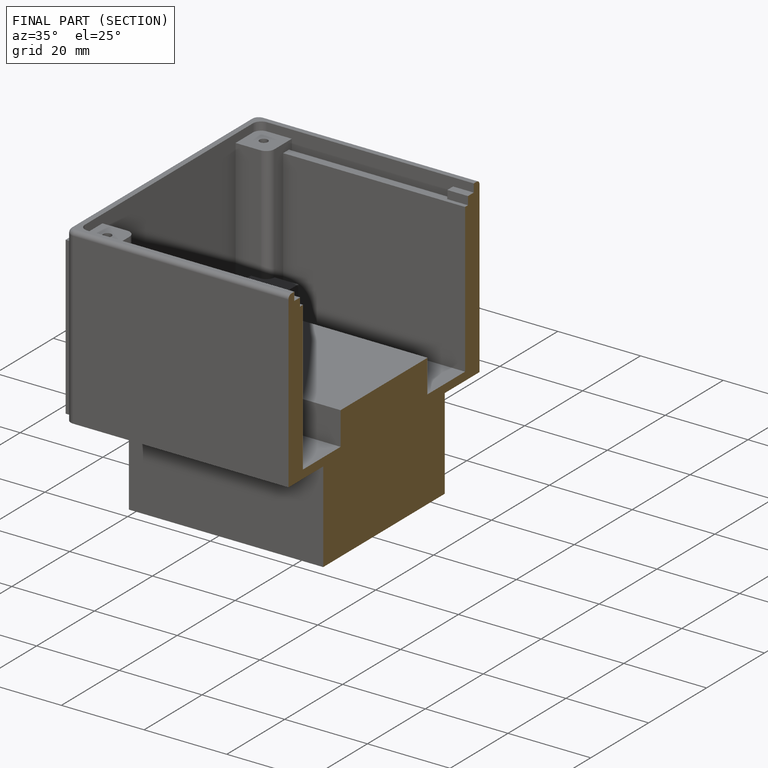
[diagram: finished part — half-section view (interior)]
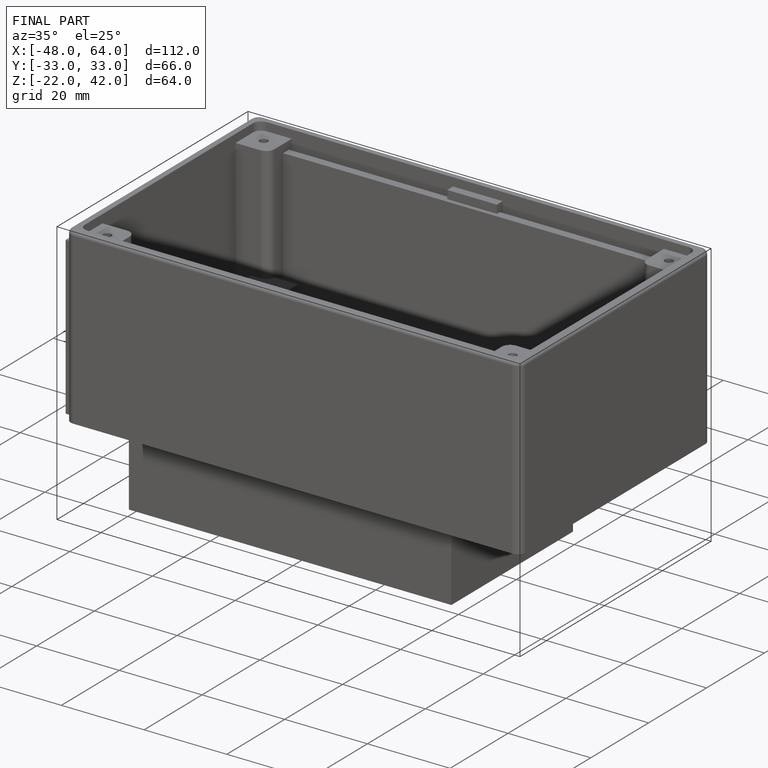
[diagram: finished part — iso view with bounding-box wireframe]
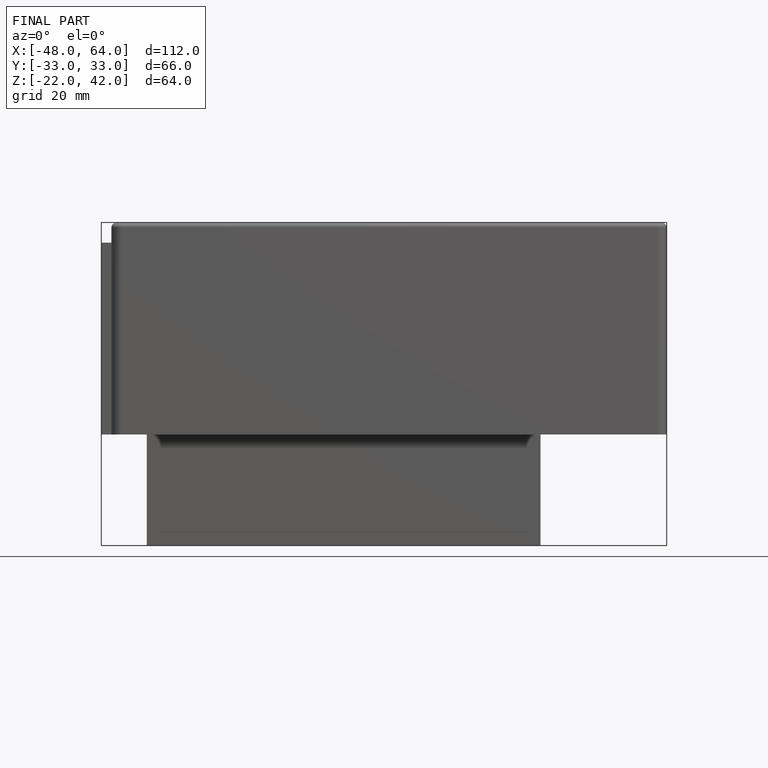
[diagram: finished part — front view with bounding-box wireframe]
